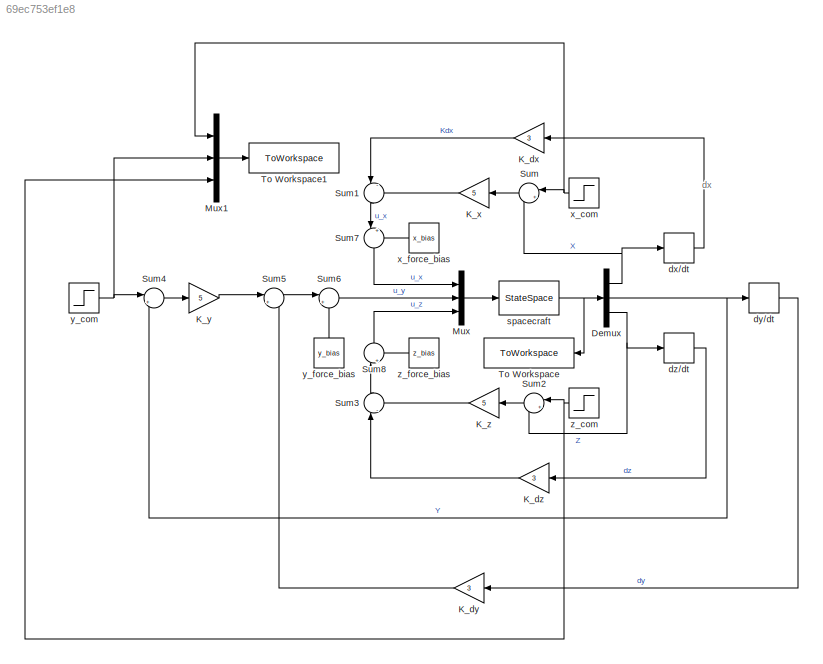
MODEL slx_69ec753ef1e8
KIND model
CONFIG AbsTol = auto
CONFIG EnableMultiTasking = off
CONFIG FixedStep = auto
CONFIG MaxStep = auto
CONFIG MinStep = auto
CONFIG RelTol = 1e-3
CONFIG SampleTimeConstraint = Unconstrained
CONFIG SolverName = VariableStepAuto
CONFIG StartTime = 0.0
CONFIG StopTime = 50
BLOCK [Demux] Demux
  Outputs = 3
  Ports = [1, 3]
BLOCK [Gain] K_dx
  Gain = 3
BLOCK [Gain] K_dy
  Gain = 3
BLOCK [Gain] K_dz
  Gain = 3
BLOCK [Gain] K_x
  Gain = 5
BLOCK [Gain] K_y
  Gain = 5
BLOCK [Gain] K_z
  Gain = 5
BLOCK [Mux] Mux
  DisplayOption = bar
  Inputs = 3
  Ports = [3, 1]
BLOCK [Mux] Mux1
  DisplayOption = bar
  Inputs = 3
  Ports = [3, 1]
BLOCK [Sum] Sum
  Inputs = |+-
  Ports = [2, 1]
BLOCK [Sum] Sum1
  Inputs = |-+
  NameLocation = right
  Ports = [2, 1]
BLOCK [Sum] Sum2
  Inputs = |+-
  Ports = [2, 1]
BLOCK [Sum] Sum3
  Inputs = |-+
  NameLocation = left
  Ports = [2, 1]
BLOCK [Sum] Sum4
  Inputs = |+-
  Ports = [2, 1]
BLOCK [Sum] Sum5
  Inputs = |+-
  NameLocation = top
  Ports = [2, 1]
BLOCK [Sum] Sum6
  Inputs = |++
  Ports = [2, 1]
BLOCK [Sum] Sum7
  Inputs = |++
  NameLocation = left
  Ports = [2, 1]
BLOCK [Sum] Sum8
  Inputs = |++
  NameLocation = right
  Ports = [2, 1]
BLOCK [ToWorkspace] To Workspace
  FixptAsFi = on
  MaxDataPoints = inf
  Ports = [1]
  SampleTime = -1
  VariableName = pos
BLOCK [ToWorkspace] To Workspace1
  FixptAsFi = on
  MaxDataPoints = inf
  NameLocation = top
  Ports = [1]
  SampleTime = -1
  VariableName = inputs
BLOCK [Derivative] dx//dt
BLOCK [Derivative] dy//dt
BLOCK [Derivative] dz//dt
BLOCK [StateSpace] spacecraft
  A = A
  B = B
  C = C
  D = D
  InitialCondition = 0
  Ports = [1, 1]
BLOCK [Step] x_com
  After = 5
  SampleTime = 0.1
  Time = 0
BLOCK [Constant] x_force_bias
  Value = x_bias
BLOCK [Step] y_com
  SampleTime = 0.1
  Time = 0
BLOCK [Constant] y_force_bias
  Value = y_bias
BLOCK [Step] z_com
  After = 4
  SampleTime = 0.1
  Time = 0
BLOCK [Constant] z_force_bias
  Value = z_bias
ANNOTATION (root): dx
NET Demux:1 -> Sum:2, dx//dt:1
NET Demux:2 -> Sum4:2, dy//dt:1
NET Demux:3 -> Sum2:2, dz//dt:1
LINE K_dx:1 -> Sum1:1
LINE K_dy:1 -> Sum5:2
LINE K_dz:1 -> Sum3:1
LINE K_x:1 -> Sum1:2
LINE K_y:1 -> Sum5:1
LINE K_z:1 -> Sum3:2
LINE Mux1:1 -> To Workspace1:1
LINE Mux:1 -> spacecraft:1
LINE Sum1:1 -> Sum7:1
LINE Sum2:1 -> K_z:1
LINE Sum3:1 -> Sum8:1
LINE Sum4:1 -> K_y:1
LINE Sum5:1 -> Sum6:1
LINE Sum6:1 -> Mux:2
LINE Sum7:1 -> Mux:1
LINE Sum8:1 -> Mux:3
LINE Sum:1 -> K_x:1
LINE dx//dt:1 -> K_dx:1
LINE dy//dt:1 -> K_dy:1
LINE dz//dt:1 -> K_dz:1
NET spacecraft:1 -> Demux:1, To Workspace:1
NET x_com:1 -> Mux1:1, Sum:1
LINE x_force_bias:1 -> Sum7:2
NET y_com:1 -> Mux1:2, Sum4:1
LINE y_force_bias:1 -> Sum6:2
NET z_com:1 -> Mux1:3, Sum2:1
LINE z_force_bias:1 -> Sum8:2
note: NET lines group one-source signal fan-out (src -> all destinations, sorted); 1:1 wires keep LINE
